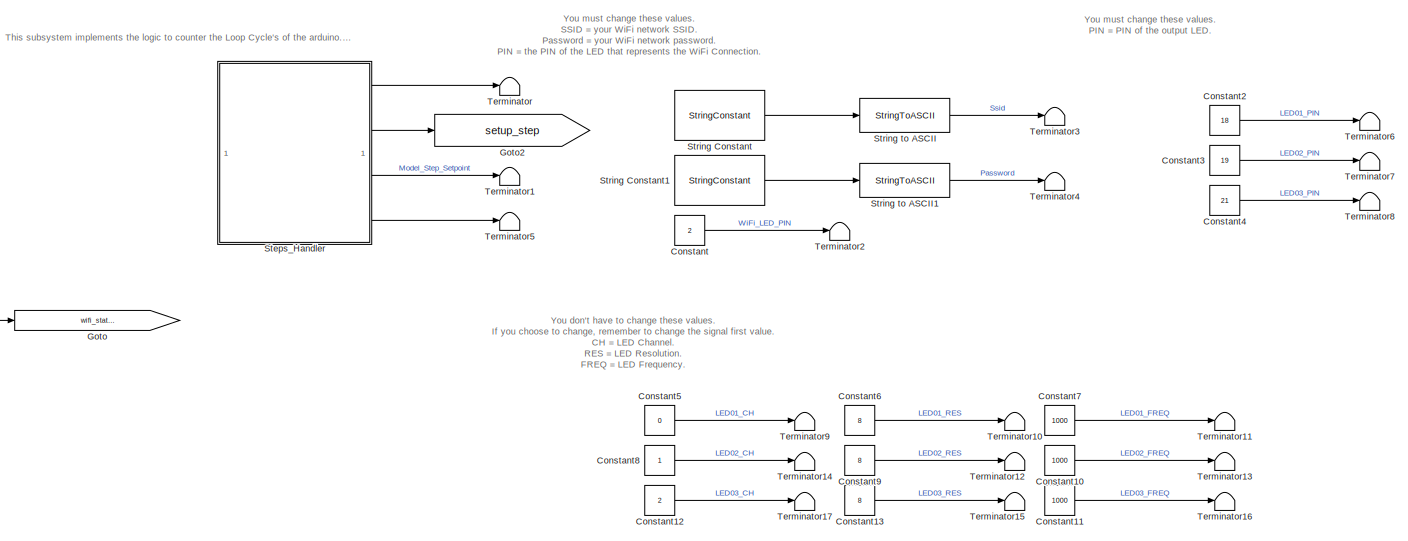
[diagram: root canvas - part 1/6, top right region]
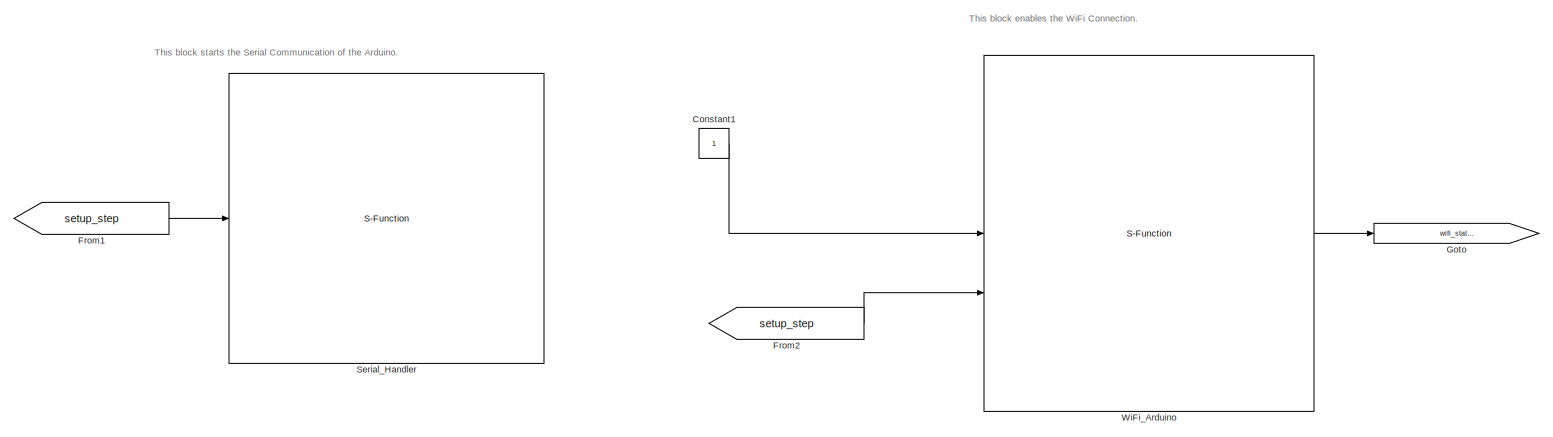
[diagram: root canvas - part 2/6, top center region]
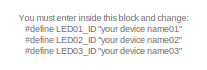
[diagram: root canvas - part 3/6, middle left region]
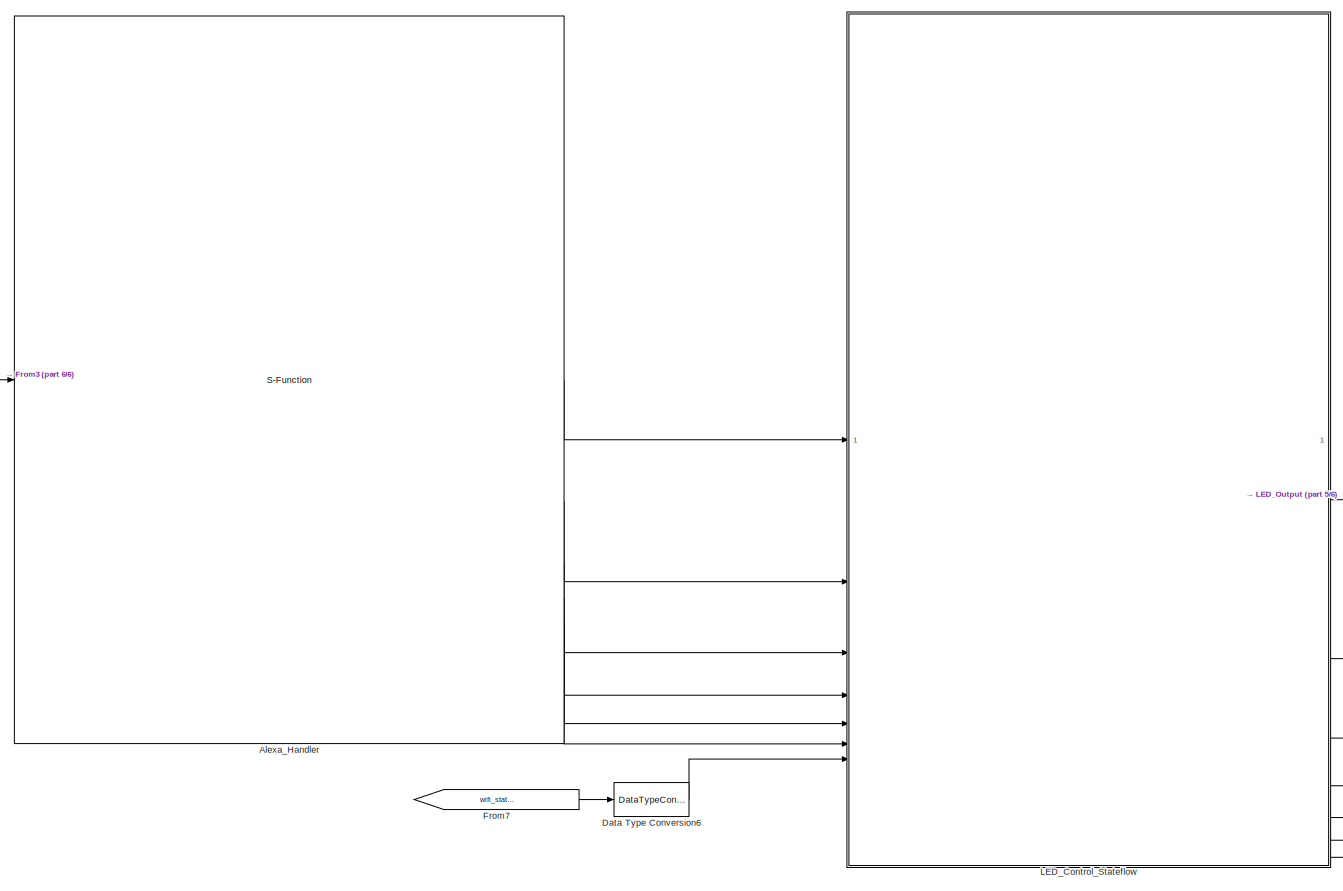
[diagram: root canvas - part 4/6, central region]
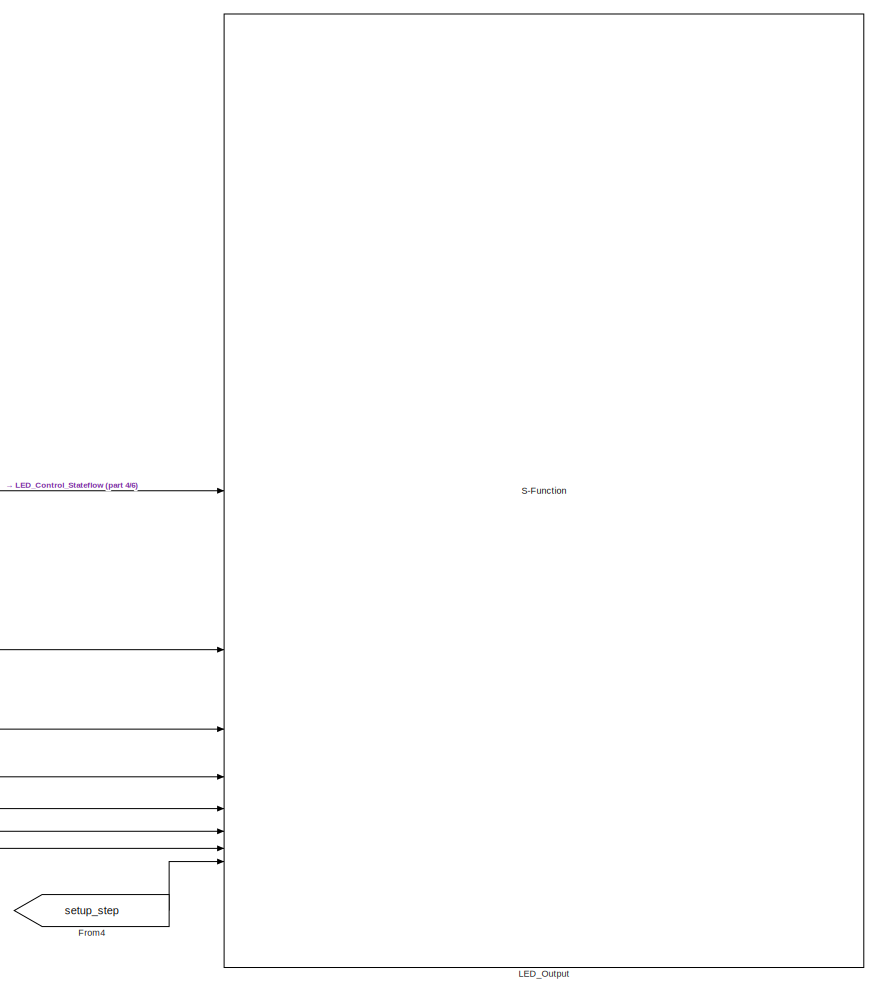
[diagram: root canvas - part 5/6, bottom right region]
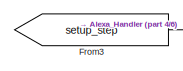
[diagram: root canvas - part 6/6, middle left region]
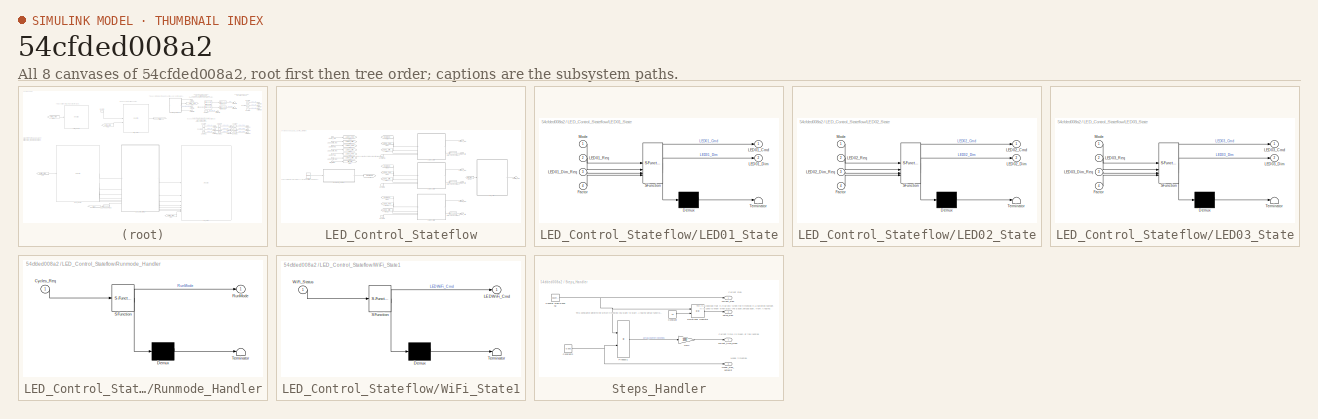
[diagram: thumbnail index - all 8 canvases of the model, root first then tree order]
MODEL slx_54cfded008a2
KIND model
CONFIG AbsTol = auto
CONFIG EnableMultiTasking = off
CONFIG FixedStep = 0.005
CONFIG MaxStep = auto
CONFIG MinStep = auto
CONFIG RelTol = 1e-3
CONFIG SampleTimeConstraint = Unconstrained
CONFIG SolverName = FixedStepDiscrete
CONFIG StartTime = 0.0
CONFIG StopTime = 30
BLOCK [S-Function] Alexa_Handler
  CopyFcn = set_param(gcbh,'LinkStatus','none')
  EnableBusSupport = off
  FunctionName = block_alexa
  OpenFcn = sfunctionwizard(gcbh)
  Priority = 4
  SFcnIsStateOwnerBlock = off
  SFunctionDeploymentMode = off
  SFunctionModules = block_alexa_wrapper.cpp
BLOCK [Constant] Constant
  OutDataTypeStr = uint8
  Value = 2
BLOCK [Constant] Constant1
  OutDataTypeStr = boolean
BLOCK [Constant] Constant10
  OutDataTypeStr = uint16
  Value = 1000
BLOCK [Constant] Constant11
  OutDataTypeStr = uint16
  Value = 1000
BLOCK [Constant] Constant12
  OutDataTypeStr = uint8
  Value = 2
BLOCK [Constant] Constant13
  OutDataTypeStr = uint8
  Value = 8
BLOCK [Constant] Constant2
  OutDataTypeStr = uint8
  Value = 18
BLOCK [Constant] Constant3
  OutDataTypeStr = uint8
  Value = 19
BLOCK [Constant] Constant4
  OutDataTypeStr = uint8
  Value = 21
BLOCK [Constant] Constant5
  OutDataTypeStr = uint8
  Value = 0
BLOCK [Constant] Constant6
  OutDataTypeStr = uint8
  Value = 8
BLOCK [Constant] Constant7
  OutDataTypeStr = uint16
  Value = 1000
BLOCK [Constant] Constant8
  OutDataTypeStr = uint8
BLOCK [Constant] Constant9
  OutDataTypeStr = uint8
  Value = 8
BLOCK [DataTypeConversion] Data Type Conversion6
  OutDataTypeStr = Enum: Adt_WiFi_Status
  RndMeth = Floor
  SaturateOnIntegerOverflow = off
BLOCK [From] From1
  GotoTag = setup_step
BLOCK [From] From2
  GotoTag = setup_step
BLOCK [From] From3
  GotoTag = setup_step
BLOCK [From] From4
  GotoTag = setup_step
BLOCK [From] From7
  GotoTag = wifi_status
BLOCK [Goto] Goto
  GotoTag = wifi_status
BLOCK [Goto] Goto2
  GotoTag = setup_step
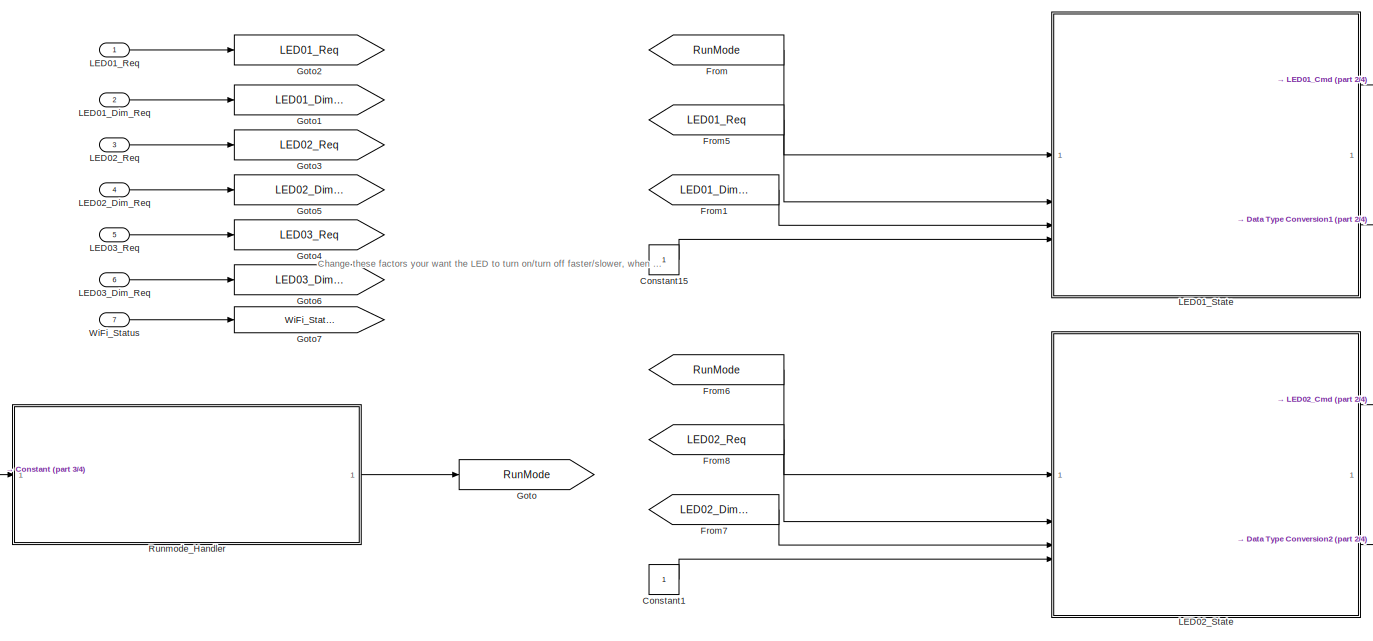
[diagram: LED_Control_Stateflow - part 1/4, central region]
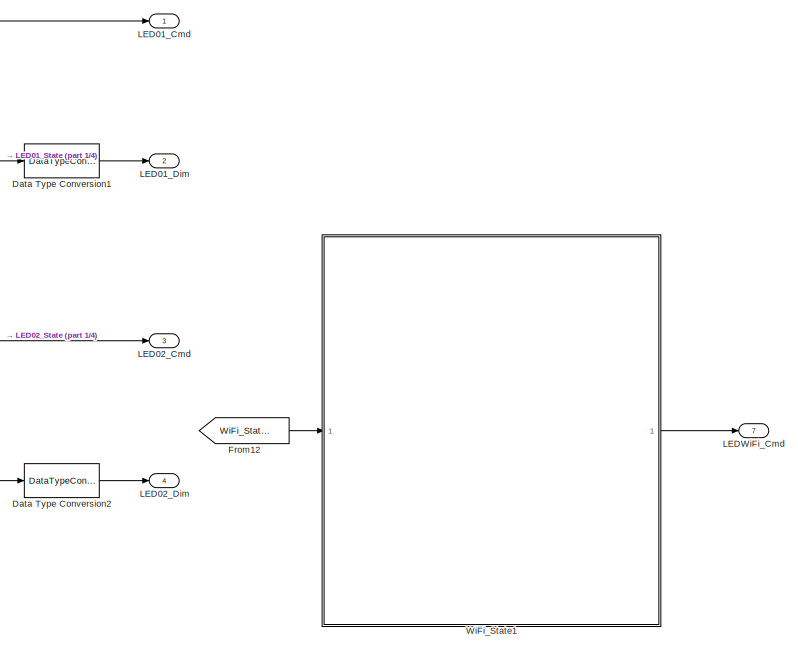
[diagram: LED_Control_Stateflow - part 2/4, middle right region]
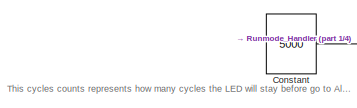
[diagram: LED_Control_Stateflow - part 3/4, middle left region]
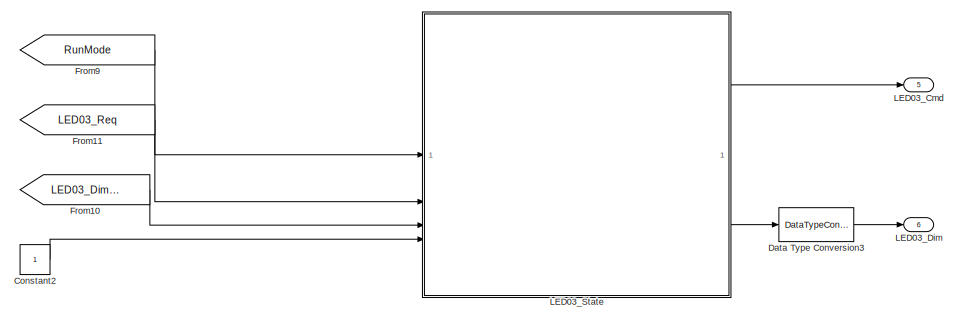
[diagram: LED_Control_Stateflow - part 4/4, bottom center region]
BLOCK [SubSystem] LED_Control_Stateflow
BLOCK [Constant] LED_Control_Stateflow/Constant
  OutDataTypeStr = uint16
  Value = 5000
BLOCK [Constant] LED_Control_Stateflow/Constant1
  OutDataTypeStr = double
BLOCK [Constant] LED_Control_Stateflow/Constant15
  OutDataTypeStr = double
BLOCK [Constant] LED_Control_Stateflow/Constant2
  OutDataTypeStr = double
BLOCK [DataTypeConversion] LED_Control_Stateflow/Data Type Conversion1
  OutDataTypeStr = uint8
  RndMeth = Floor
  SaturateOnIntegerOverflow = off
BLOCK [DataTypeConversion] LED_Control_Stateflow/Data Type Conversion2
  OutDataTypeStr = uint8
  RndMeth = Floor
  SaturateOnIntegerOverflow = off
BLOCK [DataTypeConversion] LED_Control_Stateflow/Data Type Conversion3
  OutDataTypeStr = uint8
  RndMeth = Floor
  SaturateOnIntegerOverflow = off
BLOCK [From] LED_Control_Stateflow/From
  GotoTag = RunMode
BLOCK [From] LED_Control_Stateflow/From1
  GotoTag = LED01_Dim_Req
BLOCK [From] LED_Control_Stateflow/From10
  GotoTag = LED03_Dim_Req
BLOCK [From] LED_Control_Stateflow/From11
  GotoTag = LED03_Req
BLOCK [From] LED_Control_Stateflow/From12
  GotoTag = WiFi_Status
BLOCK [From] LED_Control_Stateflow/From5
  GotoTag = LED01_Req
BLOCK [From] LED_Control_Stateflow/From6
  GotoTag = RunMode
BLOCK [From] LED_Control_Stateflow/From7
  GotoTag = LED02_Dim_Req
BLOCK [From] LED_Control_Stateflow/From8
  GotoTag = LED02_Req
BLOCK [From] LED_Control_Stateflow/From9
  GotoTag = RunMode
BLOCK [Goto] LED_Control_Stateflow/Goto
  GotoTag = RunMode
BLOCK [Goto] LED_Control_Stateflow/Goto1
  GotoTag = LED01_Dim_Req
BLOCK [Goto] LED_Control_Stateflow/Goto2
  GotoTag = LED01_Req
BLOCK [Goto] LED_Control_Stateflow/Goto3
  GotoTag = LED02_Req
BLOCK [Goto] LED_Control_Stateflow/Goto4
  GotoTag = LED03_Req
BLOCK [Goto] LED_Control_Stateflow/Goto5
  GotoTag = LED02_Dim_Req
BLOCK [Goto] LED_Control_Stateflow/Goto6
  GotoTag = LED03_Dim_Req
BLOCK [Goto] LED_Control_Stateflow/Goto7
  GotoTag = WiFi_Status
BLOCK [Outport] LED_Control_Stateflow/LED01_Cmd
BLOCK [Outport] LED_Control_Stateflow/LED01_Dim
  Port = 2
BLOCK [Inport] LED_Control_Stateflow/LED01_Dim_Req
  Port = 2
BLOCK [Inport] LED_Control_Stateflow/LED01_Req
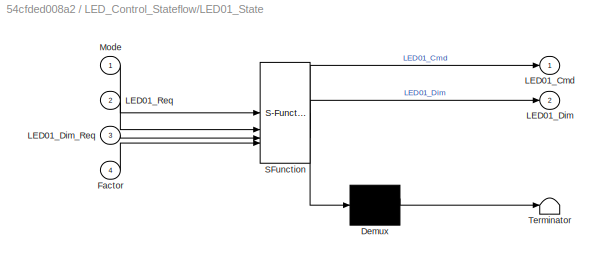
BLOCK [SubSystem] LED_Control_Stateflow/LED01_State
  ErrorFcn = Stateflow.Translate.translate
  PermitHierarchicalResolution = ExplicitOnly
  SFBlockType = Chart
  TreatAsAtomicUnit = on
BLOCK [Demux] LED_Control_Stateflow/LED01_State/ Demux 
  Outputs = 1
BLOCK [S-Function] LED_Control_Stateflow/LED01_State/ SFunction 
  EnableBusSupport = on
  FunctionName = sf_sfun
  PortCounts = [4 3]
  SFcnIsStateOwnerBlock = off
  SFunctionDeploymentMode = off
  Tag = Stateflow S-Function 4
BLOCK [Terminator] LED_Control_Stateflow/LED01_State/ Terminator 
BLOCK [Inport] LED_Control_Stateflow/LED01_State/Factor
  Port = 4
BLOCK [Outport] LED_Control_Stateflow/LED01_State/LED01_Cmd
BLOCK [Outport] LED_Control_Stateflow/LED01_State/LED01_Dim
  Port = 2
BLOCK [Inport] LED_Control_Stateflow/LED01_State/LED01_Dim_Req
  Port = 3
BLOCK [Inport] LED_Control_Stateflow/LED01_State/LED01_Req
  Port = 2
BLOCK [Inport] LED_Control_Stateflow/LED01_State/Mode
BLOCK [Outport] LED_Control_Stateflow/LED02_Cmd
  Port = 3
BLOCK [Outport] LED_Control_Stateflow/LED02_Dim
  Port = 4
BLOCK [Inport] LED_Control_Stateflow/LED02_Dim_Req
  Port = 4
BLOCK [Inport] LED_Control_Stateflow/LED02_Req
  Port = 3
BLOCK [SubSystem] LED_Control_Stateflow/LED02_State
  ErrorFcn = Stateflow.Translate.translate
  PermitHierarchicalResolution = ExplicitOnly
  SFBlockType = Chart
  TreatAsAtomicUnit = on
BLOCK [Demux] LED_Control_Stateflow/LED02_State/ Demux 
  Outputs = 1
BLOCK [S-Function] LED_Control_Stateflow/LED02_State/ SFunction 
  EnableBusSupport = on
  FunctionName = sf_sfun
  PortCounts = [4 3]
  SFcnIsStateOwnerBlock = off
  SFunctionDeploymentMode = off
  Tag = Stateflow S-Function 1
BLOCK [Terminator] LED_Control_Stateflow/LED02_State/ Terminator 
BLOCK [Inport] LED_Control_Stateflow/LED02_State/Factor
  Port = 4
BLOCK [Outport] LED_Control_Stateflow/LED02_State/LED02_Cmd
BLOCK [Outport] LED_Control_Stateflow/LED02_State/LED02_Dim
  Port = 2
BLOCK [Inport] LED_Control_Stateflow/LED02_State/LED02_Dim_Req
  Port = 3
BLOCK [Inport] LED_Control_Stateflow/LED02_State/LED02_Req
  Port = 2
BLOCK [Inport] LED_Control_Stateflow/LED02_State/Mode
BLOCK [Outport] LED_Control_Stateflow/LED03_Cmd
  Port = 5
BLOCK [Outport] LED_Control_Stateflow/LED03_Dim
  Port = 6
BLOCK [Inport] LED_Control_Stateflow/LED03_Dim_Req
  Port = 6
BLOCK [Inport] LED_Control_Stateflow/LED03_Req
  Port = 5
BLOCK [SubSystem] LED_Control_Stateflow/LED03_State
  ErrorFcn = Stateflow.Translate.translate
  PermitHierarchicalResolution = ExplicitOnly
  SFBlockType = Chart
  TreatAsAtomicUnit = on
BLOCK [Demux] LED_Control_Stateflow/LED03_State/ Demux 
  Outputs = 1
BLOCK [S-Function] LED_Control_Stateflow/LED03_State/ SFunction 
  EnableBusSupport = on
  FunctionName = sf_sfun
  PortCounts = [4 3]
  SFcnIsStateOwnerBlock = off
  SFunctionDeploymentMode = off
  Tag = Stateflow S-Function 5
BLOCK [Terminator] LED_Control_Stateflow/LED03_State/ Terminator 
BLOCK [Inport] LED_Control_Stateflow/LED03_State/Factor
  Port = 4
BLOCK [Outport] LED_Control_Stateflow/LED03_State/LED03_Cmd
BLOCK [Outport] LED_Control_Stateflow/LED03_State/LED03_Dim
  Port = 2
BLOCK [Inport] LED_Control_Stateflow/LED03_State/LED03_Dim_Req
  Port = 3
BLOCK [Inport] LED_Control_Stateflow/LED03_State/LED03_Req
  Port = 2
BLOCK [Inport] LED_Control_Stateflow/LED03_State/Mode
BLOCK [Outport] LED_Control_Stateflow/LEDWiFi_Cmd
  Port = 7
BLOCK [SubSystem] LED_Control_Stateflow/Runmode_Handler
  ErrorFcn = Stateflow.Translate.translate
  PermitHierarchicalResolution = ExplicitOnly
  SFBlockType = Chart
  TreatAsAtomicUnit = on
BLOCK [Demux] LED_Control_Stateflow/Runmode_Handler/ Demux 
  Outputs = 1
BLOCK [S-Function] LED_Control_Stateflow/Runmode_Handler/ SFunction 
  EnableBusSupport = on
  FunctionName = sf_sfun
  PortCounts = [1 2]
  SFcnIsStateOwnerBlock = off
  SFunctionDeploymentMode = off
  Tag = Stateflow S-Function 3
BLOCK [Terminator] LED_Control_Stateflow/Runmode_Handler/ Terminator 
BLOCK [Inport] LED_Control_Stateflow/Runmode_Handler/Cycles_Req
BLOCK [Outport] LED_Control_Stateflow/Runmode_Handler/RunMode
BLOCK [SubSystem] LED_Control_Stateflow/WiFi_State1
  ErrorFcn = Stateflow.Translate.translate
  PermitHierarchicalResolution = ExplicitOnly
  SFBlockType = Chart
  TreatAsAtomicUnit = on
BLOCK [Demux] LED_Control_Stateflow/WiFi_State1/ Demux 
  Outputs = 1
BLOCK [S-Function] LED_Control_Stateflow/WiFi_State1/ SFunction 
  EnableBusSupport = on
  FunctionName = sf_sfun
  PortCounts = [1 2]
  SFcnIsStateOwnerBlock = off
  SFunctionDeploymentMode = off
  Tag = Stateflow S-Function 6
BLOCK [Terminator] LED_Control_Stateflow/WiFi_State1/ Terminator 
BLOCK [Outport] LED_Control_Stateflow/WiFi_State1/LEDWiFi_Cmd
BLOCK [Inport] LED_Control_Stateflow/WiFi_State1/WiFi_Status
BLOCK [Inport] LED_Control_Stateflow/WiFi_Status
  Port = 7
BLOCK [S-Function] LED_Output
  CopyFcn = set_param(gcbh,'LinkStatus','none')
  EnableBusSupport = off
  FunctionName = block_brightness
  OpenFcn = sfunctionwizard(gcbh)
  SFcnIsStateOwnerBlock = off
  SFunctionDeploymentMode = off
  SFunctionModules = block_brightness_wrapper.cpp
BLOCK [S-Function] Serial_Handler
  CopyFcn = set_param(gcbh,'LinkStatus','none')
  EnableBusSupport = off
  FunctionName = block_serial
  OpenFcn = sfunctionwizard(gcbh)
  Priority = 1
  SFcnIsStateOwnerBlock = off
  SFunctionDeploymentMode = off
  SFunctionModules = block_serial_wrapper.cpp
BLOCK [SubSystem] Steps_Handler
BLOCK [Constant] Steps_Handler/Constant
  Value = 10
BLOCK [Constant] Steps_Handler/Constant2
  OutDataTypeStr = double
  Value = 0.005
BLOCK [Reference] Steps_Handler/Counter Free-Running  REF=simulink/Sources/Counter
Free-Running
  SourceBlock = simulink/Sources/Counter\nFree-Running
  SourceType = Counter Free-Running
BLOCK [Gain] Steps_Handler/Gain
  Gain = 1000
BLOCK [Product] Steps_Handler/Product1
  OutDataTypeStr = double
BLOCK [RelationalOperator] Steps_Handler/Relational Operator
  InputSameDT = off
  Operator = ==
  OutDataTypeStr = boolean
  RndMeth = Simplest
BLOCK [Outport] Steps_Handler/current_step
  OutDataTypeStr = uint32
BLOCK [Outport] Steps_Handler/current_time_msec
  OutDataTypeStr = double
  Port = 4
BLOCK [Outport] Steps_Handler/model_step_setpoint
  OutDataTypeStr = double
  Port = 3
BLOCK [Outport] Steps_Handler/setup_step
  Port = 2
BLOCK [StringConstant] String Constant
  String = "ssid"
BLOCK [StringConstant] String Constant1
  String = "password"
BLOCK [StringToASCII] String to ASCII
  OutputVectorSize = 32
BLOCK [StringToASCII] String to ASCII1
  OutputVectorSize = 32
BLOCK [Terminator] Terminator
BLOCK [Terminator] Terminator1
BLOCK [Terminator] Terminator10
BLOCK [Terminator] Terminator11
BLOCK [Terminator] Terminator12
BLOCK [Terminator] Terminator13
BLOCK [Terminator] Terminator14
BLOCK [Terminator] Terminator15
BLOCK [Terminator] Terminator16
BLOCK [Terminator] Terminator17
BLOCK [Terminator] Terminator2
BLOCK [Terminator] Terminator3
BLOCK [Terminator] Terminator4
BLOCK [Terminator] Terminator5
BLOCK [Terminator] Terminator6
BLOCK [Terminator] Terminator7
BLOCK [Terminator] Terminator8
BLOCK [Terminator] Terminator9
BLOCK [S-Function] WiFi_Arduino
  CopyFcn = set_param(gcbh,'LinkStatus','none')
  EnableBusSupport = off
  FunctionName = block_wifi
  OpenFcn = sfunctionwizard(gcbh)
  Priority = 2
  SFcnIsStateOwnerBlock = off
  SFunctionDeploymentMode = off
  SFunctionModules = block_wifi_wrapper.cpp
ANNOTATION (root): This block enables the WiFi Connection.
ANNOTATION (root): This block starts the Serial Communication of the Arduino.
ANNOTATION (root): This subsystem implements the logic to counter the Loop Cycle's of the arduino. By this, is possible to calculate the current loop/time.
ANNOTATION (root): You don't have to change these values. If you choose to change, remember to change the signal first value. CH = LED Channel. RES = LED Resolution. FREQ = LED Frequency.
ANNOTATION (root): You must change these values. PIN = PIN of the output LED.
ANNOTATION (root): You must change these values. SSID = your WiFi network SSID. Password = your WiFi network password. PIN = the PIN of the LED that represents the WiFi Connection.
ANNOTATION (root): You must enter inside this block and change: #define LED01_ID "your device name01" #define LED02_ID "your device name02" #define LED03_ID "your device name03"
ANNOTATION LED_Control_Stateflow: Change these factors your want the LED to turn on/turn off faster/slower, when in AllOn mode.
ANNOTATION LED_Control_Stateflow: This cycles counts represents how many cycles the LED will stay before go to Alexa Mode.
ANNOTATION Steps_Handler: This constante determine which timestep you want to start Arduino setup function.
ANNOTATION Steps_Handler: Current step.
ANNOTATION Steps_Handler: Current time (in msec) of the running.
ANNOTATION Steps_Handler: Model timestep.
ANNOTATION Steps_Handler: This is a boolean that is true only when the timestep is a selected number. It is used to know when start the "setup" from Arduino.
LINE Alexa_Handler:1 -> LED_Control_Stateflow:1
LINE Alexa_Handler:2 -> LED_Control_Stateflow:2
LINE Alexa_Handler:3 -> LED_Control_Stateflow:3
LINE Alexa_Handler:4 -> LED_Control_Stateflow:4
LINE Alexa_Handler:5 -> LED_Control_Stateflow:5
LINE Alexa_Handler:6 -> LED_Control_Stateflow:6
LINE Constant10:1 -> Terminator13:1
LINE Constant11:1 -> Terminator16:1
LINE Constant12:1 -> Terminator17:1
LINE Constant13:1 -> Terminator15:1
LINE Constant1:1 -> WiFi_Arduino:1
LINE Constant2:1 -> Terminator6:1
LINE Constant3:1 -> Terminator7:1
LINE Constant4:1 -> Terminator8:1
LINE Constant5:1 -> Terminator9:1
LINE Constant6:1 -> Terminator10:1
LINE Constant7:1 -> Terminator11:1
LINE Constant8:1 -> Terminator14:1
LINE Constant9:1 -> Terminator12:1
LINE Constant:1 -> Terminator2:1
LINE Data Type Conversion6:1 -> LED_Control_Stateflow:7
LINE From1:1 -> Serial_Handler:1
LINE From2:1 -> WiFi_Arduino:2
LINE From3:1 -> Alexa_Handler:1
LINE From4:1 -> LED_Output:8
LINE From7:1 -> Data Type Conversion6:1
LINE LED_Control_Stateflow/Constant15:1 -> LED_Control_Stateflow/LED01_State:4
LINE LED_Control_Stateflow/Constant1:1 -> LED_Control_Stateflow/LED02_State:4
LINE LED_Control_Stateflow/Constant2:1 -> LED_Control_Stateflow/LED03_State:4
LINE LED_Control_Stateflow/Constant:1 -> LED_Control_Stateflow/Runmode_Handler:1
LINE LED_Control_Stateflow/Data Type Conversion1:1 -> LED_Control_Stateflow/LED01_Dim:1
LINE LED_Control_Stateflow/Data Type Conversion2:1 -> LED_Control_Stateflow/LED02_Dim:1
LINE LED_Control_Stateflow/Data Type Conversion3:1 -> LED_Control_Stateflow/LED03_Dim:1
LINE LED_Control_Stateflow/From10:1 -> LED_Control_Stateflow/LED03_State:3
LINE LED_Control_Stateflow/From11:1 -> LED_Control_Stateflow/LED03_State:2
LINE LED_Control_Stateflow/From12:1 -> LED_Control_Stateflow/WiFi_State1:1
LINE LED_Control_Stateflow/From1:1 -> LED_Control_Stateflow/LED01_State:3
LINE LED_Control_Stateflow/From5:1 -> LED_Control_Stateflow/LED01_State:2
LINE LED_Control_Stateflow/From6:1 -> LED_Control_Stateflow/LED02_State:1
LINE LED_Control_Stateflow/From7:1 -> LED_Control_Stateflow/LED02_State:3
LINE LED_Control_Stateflow/From8:1 -> LED_Control_Stateflow/LED02_State:2
LINE LED_Control_Stateflow/From9:1 -> LED_Control_Stateflow/LED03_State:1
LINE LED_Control_Stateflow/From:1 -> LED_Control_Stateflow/LED01_State:1
LINE LED_Control_Stateflow/LED01_Dim_Req:1 -> LED_Control_Stateflow/Goto1:1
LINE LED_Control_Stateflow/LED01_Req:1 -> LED_Control_Stateflow/Goto2:1
LINE LED_Control_Stateflow/LED01_State:1 -> LED_Control_Stateflow/LED01_Cmd:1
LINE LED_Control_Stateflow/LED01_State:2 -> LED_Control_Stateflow/Data Type Conversion1:1
LINE LED_Control_Stateflow/LED02_Dim_Req:1 -> LED_Control_Stateflow/Goto5:1
LINE LED_Control_Stateflow/LED02_Req:1 -> LED_Control_Stateflow/Goto3:1
LINE LED_Control_Stateflow/LED02_State:1 -> LED_Control_Stateflow/LED02_Cmd:1
LINE LED_Control_Stateflow/LED02_State:2 -> LED_Control_Stateflow/Data Type Conversion2:1
LINE LED_Control_Stateflow/LED03_Dim_Req:1 -> LED_Control_Stateflow/Goto6:1
LINE LED_Control_Stateflow/LED03_Req:1 -> LED_Control_Stateflow/Goto4:1
LINE LED_Control_Stateflow/LED03_State:1 -> LED_Control_Stateflow/LED03_Cmd:1
LINE LED_Control_Stateflow/LED03_State:2 -> LED_Control_Stateflow/Data Type Conversion3:1
LINE LED_Control_Stateflow/Runmode_Handler:1 -> LED_Control_Stateflow/Goto:1
LINE LED_Control_Stateflow/WiFi_State1:1 -> LED_Control_Stateflow/LEDWiFi_Cmd:1
LINE LED_Control_Stateflow/WiFi_Status:1 -> LED_Control_Stateflow/Goto7:1
LINE LED_Control_Stateflow:1 -> LED_Output:1
LINE LED_Control_Stateflow:2 -> LED_Output:2
LINE LED_Control_Stateflow:3 -> LED_Output:3
LINE LED_Control_Stateflow:4 -> LED_Output:4
LINE LED_Control_Stateflow:5 -> LED_Output:5
LINE LED_Control_Stateflow:6 -> LED_Output:6
LINE LED_Control_Stateflow:7 -> LED_Output:7
NET Steps_Handler/Constant2:1 -> Steps_Handler/Product1:2, Steps_Handler/model_step_setpoint:1
LINE Steps_Handler/Constant:1 -> Steps_Handler/Relational Operator:2
NET Steps_Handler/Counter Free-Running:1 -> Steps_Handler/Product1:1, Steps_Handler/Relational Operator:1, Steps_Handler/current_step:1
LINE Steps_Handler/Gain:1 -> Steps_Handler/current_time_msec:1
LINE Steps_Handler/Product1:1 -> Steps_Handler/Gain:1
LINE Steps_Handler/Relational Operator:1 -> Steps_Handler/setup_step:1
LINE Steps_Handler:1 -> Terminator:1
LINE Steps_Handler:2 -> Goto2:1
LINE Steps_Handler:3 -> Terminator1:1
LINE Steps_Handler:4 -> Terminator5:1
LINE String Constant1:1 -> String to ASCII1:1
LINE String Constant:1 -> String to ASCII:1
LINE String to ASCII1:1 -> Terminator4:1
LINE String to ASCII:1 -> Terminator3:1
LINE WiFi_Arduino:1 -> Goto:1
note: NET lines group one-source signal fan-out (src -> all destinations, sorted); 1:1 wires keep LINE
CHART LED_Control_Stateflow/LED03_State states=5 transitions=10
  STATE_LABEL 'DIM_DecreaseFcn'
  STATE_LABEL '{LED03_Dim = LED03_Dim - Factor;}'
  STATE_LABEL 'DIM_IncreaseFcn'
  STATE_LABEL '{LED03_Dim = LED03_Dim + Factor;}'
  STATE_LABEL 'MODE\nen:\nLED03_Cmd = LED03_Req;\nLED03_Dim = LED03_Dim_Req;\ndu:\nLED03_Cmd = LED03_Req;\nLED03_Dim = LED03_Dim_Req;'
  STATE_LABEL 'INCREMENT\nen:\nLED03_Dim = 1;\ndu:\nDIM_IncreaseFcn();\nLED03_Cmd = true;'
  STATE_LABEL 'DECREMENT\nen:\nLED03_Dim = 255;\ndu:\nDIM_DecreaseFcn();\nLED03_Cmd = true;'
CHART LED_Control_Stateflow/WiFi_State1 states=2 transitions=6
  STATE_LABEL 'WiFi_LED'
  STATE_LABEL '[WiFi_Status==Adt_WiFi_Status.Connected]'
  STATE_LABEL '{LEDWiFi_Cmd=true}'
  STATE_LABEL '{LEDWiFi_Cmd=false}'
  STATE_LABEL 'Start\ndu:\nWiFi_LED();\n'
CHART LED_Control_Stateflow/LED02_State states=5 transitions=10
  STATE_LABEL 'DIM_IncreaseFcn'
  STATE_LABEL '{LED02_Dim = LED02_Dim + Factor;}'
  STATE_LABEL 'DIM_DecreaseFcn'
  STATE_LABEL '{LED02_Dim = LED02_Dim - Factor;}'
  STATE_LABEL 'MODE\nen:\nLED02_Cmd = LED02_Req;\nLED02_Dim = LED02_Dim_Req;\ndu:\nLED02_Cmd = LED02_Req;\nLED02_Dim = LED02_Dim_Req;'
  STATE_LABEL 'INCREMENT\nen:\nLED02_Dim = 1;\ndu:\nDIM_IncreaseFcn();\nLED02_Cmd = true;\n'
  STATE_LABEL 'DECREMENT\nen:\nLED02_Dim = 255;\ndu:\nDIM_DecreaseFcn();\nLED02_Cmd = true;\n'
CHART LED_Control_Stateflow/Runmode_Handler states=3 transitions=8
  STATE_LABEL 'CyclesCount'
  STATE_LABEL '[Count >= Cycles_Req]'
  STATE_LABEL '[Count < Cycles_Req]'
  STATE_LABEL '{JobDone = true;}'
  STATE_LABEL '{JobDone = false;}'
  STATE_LABEL 'Out\nen:\nJobDone = false;\ndu:\nCount = Count + uint16(1);\nRunMode = Adt_RunMode.AllOn;\nCyclesCount();\n'
  STATE_LABEL 'In\nen:\n%JobDone = false;\ndu:\nCount = uint16(0);\nRunMode = Adt_RunMode.Alexa;\n'
CHART LED_Control_Stateflow/LED01_State states=5 transitions=10
  STATE_LABEL 'DIM01_IncreaseFcn'
  STATE_LABEL '{LED01_Dim = LED01_Dim + Factor;}'
  STATE_LABEL 'DIM01_DecreaseFcn'
  STATE_LABEL '{LED01_Dim = LED01_Dim - Factor;}'
  STATE_LABEL 'MODE\nen:\nLED01_Cmd = LED01_Req;\nLED01_Dim = LED01_Dim_Req;\ndu:\nLED01_Cmd = LED01_Req;\nLED01_Dim = LED01_Dim_Req;\n'
  STATE_LABEL 'INCREMENT\nen:\nLED01_Dim = 1;\ndu:\nDIM01_IncreaseFcn();\nLED01_Cmd = true;\n'
  STATE_LABEL 'DECREMENT\nen:\nLED01_Dim = 255;\ndu:\nDIM01_DecreaseFcn();\nLED01_Cmd = true;\n'
CHART  states=0 transitions=0
CHART  states=0 transitions=0
CHART  states=0 transitions=0
CHART  states=0 transitions=0
CHART  states=0 transitions=0
